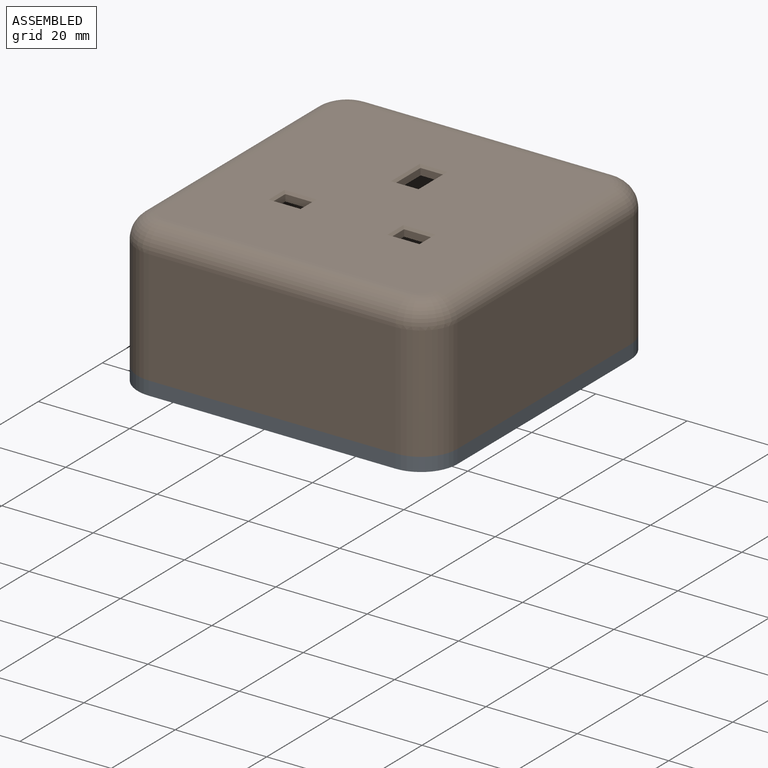
[diagram: assembled view]
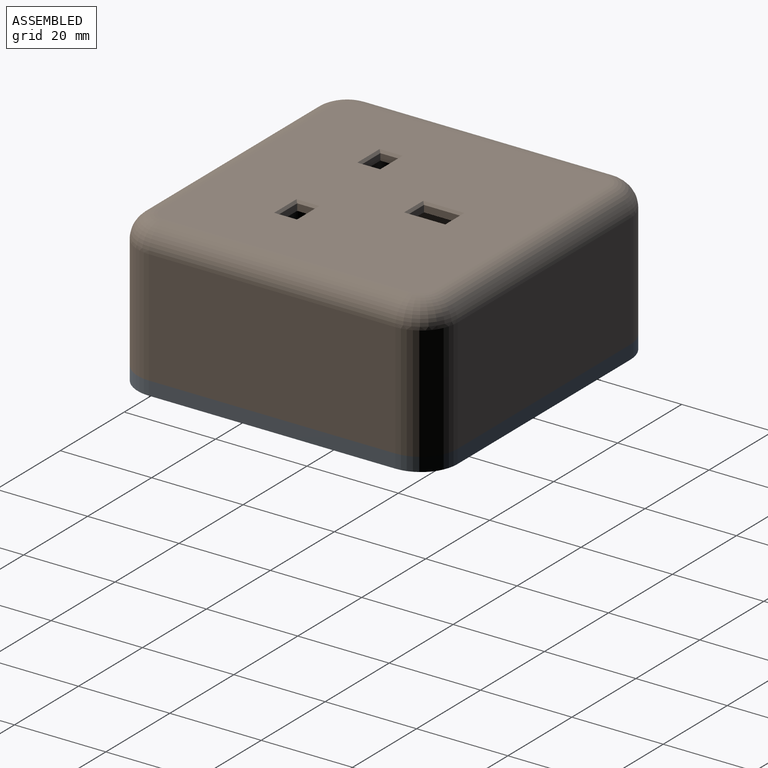
[diagram: assembled view, second angle]
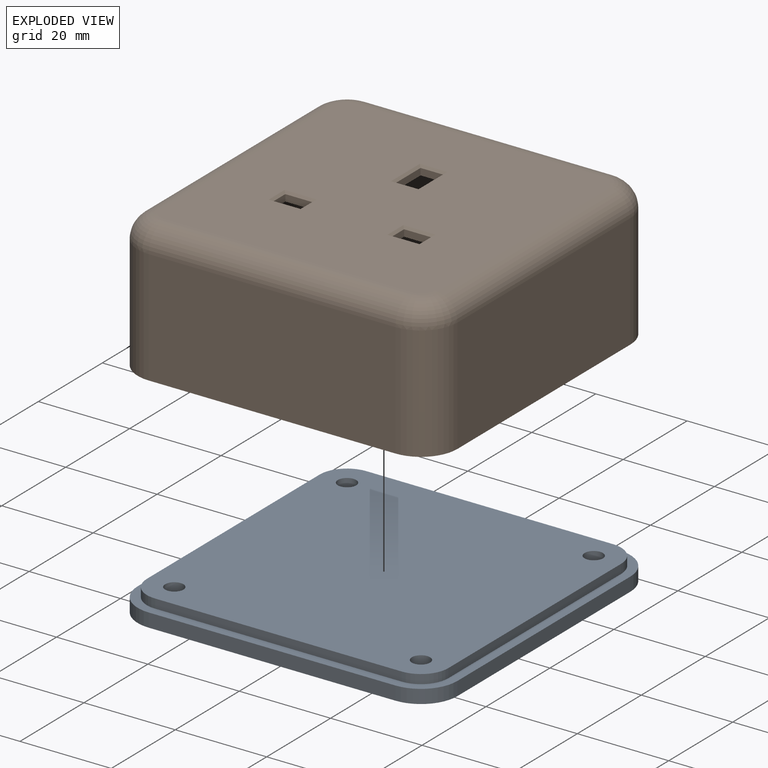
[diagram: exploded view]
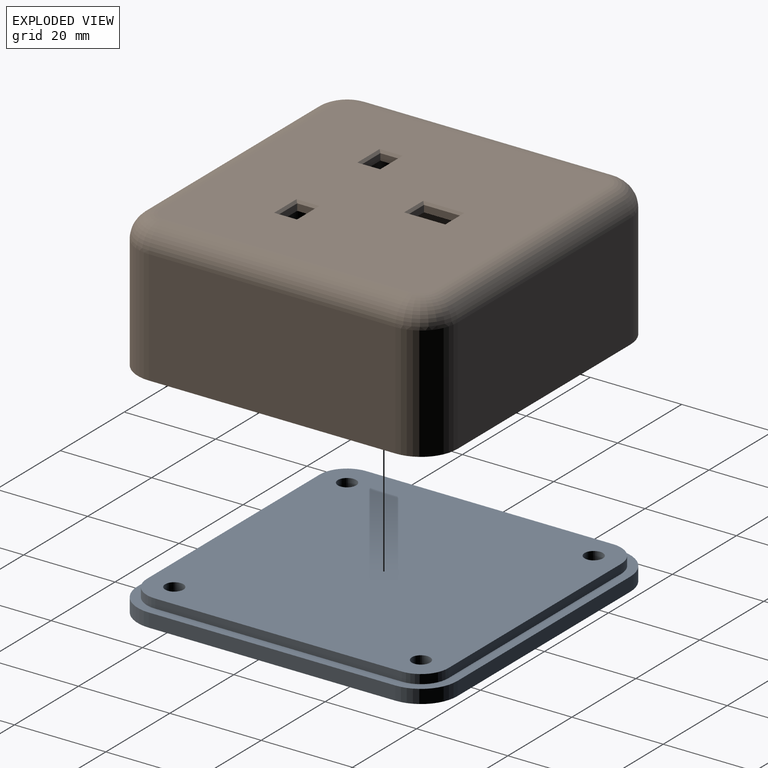
[diagram: exploded view, second angle]
ASSEMBLY  parts=2 mates=2
PART A: 27 faces, bbox 70x5x70 mm
  f0: plane 54x3mm, normal (1,0,0), area 162mm2, adj f4,f5,f6,f9
  f1: plane 54x3mm, normal (0,0,1), area 162mm2, adj f4,f5,f6,f7
  f2: plane 54x3mm, normal (-1,0,0), area 162mm2, adj f4,f5,f7,f8
  f3: plane 54x3mm, normal (0,0,-1), area 162mm2, adj f4,f5,f8,f9
  f4: plane 70x70mm, normal (0,-1,0), area 520mm2, adj f0,f1,f2,f3,f6,f7,f8,f9
  f5: plane 70x70mm, normal (0,1,0), area 4691.1mm2, adj f0,f1,f2,f3,f6,f7,f8,f9
  f6: cylinder r=8mm len=8mm, axis (0,-1,0), area 37.7mm2, adj f0,f1,f4,f5
  f7: cylinder r=8mm len=8mm, axis (0,1,0), area 37.7mm2, adj f1,f2,f4,f5
  f8: cylinder r=8mm len=8mm, axis (0,-1,0), area 37.7mm2, adj f2,f3,f4,f5
  f9: cylinder r=8mm len=8mm, axis (0,1,0), area 37.7mm2, adj f0,f3,f4,f5
  f10: plane 54x2mm, normal (1,0,0), area 108mm2, adj f4,f11,f17,f18
  f11: cylinder r=6mm len=6mm, axis (0,1,0), area 18.8mm2, adj f4,f10,f12,f18
  f12: plane 54x2mm, normal (0,0,1), area 108mm2, adj f4,f11,f13,f18
  f13: cylinder r=6mm len=6mm, axis (0,1,0), area 18.8mm2, adj f4,f12,f14,f18
  f14: plane 54x2mm, normal (-1,0,0), area 108mm2, adj f4,f13,f15,f18
  f15: cylinder r=6mm len=6mm, axis (0,1,0), area 18.8mm2, adj f4,f14,f16,f18
  f16: plane 54x2mm, normal (0,0,-1), area 108mm2, adj f4,f15,f17,f18
  f17: cylinder r=6mm len=6mm, axis (0,1,0), area 18.8mm2, adj f4,f10,f16,f18
  f18: plane 66x66mm, normal (0,-1,0), area 4274.8mm2, adj f10,f11,f12,f13,f14,f15,f16,f17
  f19: cylinder r=2mm len=4mm, axis (0,-1,0), area 44mm2, adj f18,f25
  f20: cylinder r=2mm len=4mm, axis (0,-1,0), area 44mm2, adj f18,f26
  f21: cylinder r=2mm len=4mm, axis (0,-1,0), area 44mm2, adj f18,f23
  f22: cylinder r=2mm len=4mm, axis (0,-1,0), area 44mm2, adj f18,f24
  f23: cone r=3.5mm half-angle=45deg, axis (0,1,0), area 36.7mm2, adj f5,f21
  f24: cone r=3.5mm half-angle=45deg, axis (0,1,0), area 36.7mm2, adj f5,f22
  f25: cone r=3.5mm half-angle=45deg, axis (0,1,0), area 36.7mm2, adj f5,f19
  f26: cone r=3.5mm half-angle=45deg, axis (0,1,0), area 36.7mm2, adj f5,f20
PART B: 91 faces, bbox 70x70x30 mm
  f0: plane 60x60mm, normal (0,0,-1), area 3009.6mm2, adj f3,f4,f7,f8,f31,f32,f33,f34
  f1: plane 54x25mm, normal (0,-1,0), area 976.6mm2, adj f2,f4,f12,f29,f63,f64,f72,f73
  f2: cylinder r=6mm len=6mm, axis (0,0,-1), area 28.3mm2, adj f1,f6,f12,f73
  f3: cylinder r=3mm len=37.03mm, axis (0,1,0), area 174.5mm2, adj f0,f9,f47,f65
  f4: cylinder r=3mm len=37.03mm, axis (1,0,0), area 174.5mm2, adj f0,f1,f67,f76
  f5: plane 54x25mm, normal (0,1,0), area 976.6mm2, adj f7,f10,f12,f30,f45,f46,f54,f55
  f6: plane 54x25mm, normal (-1,0,0), area 976.6mm2, adj f2,f8,f12,f30,f52,f55,f71,f73
  f7: cylinder r=3mm len=37.03mm, axis (-1,0,0), area 174.5mm2, adj f0,f5,f49,f58
  f8: cylinder r=3mm len=37.03mm, axis (0,-1,0), area 174.5mm2, adj f0,f6,f56,f74
  f9: plane 54x25mm, normal (1,0,0), area 976.6mm2, adj f3,f10,f12,f29,f44,f46,f61,f64
  f10: cylinder r=6mm len=6mm, axis (0,0,-1), area 28.3mm2, adj f5,f9,f12,f46
  f11: plane 60x60mm, normal (0,0,1), area 3468.3mm2, adj f21,f22,f23,f24,f25,f26,f27,f28
  f12: plane 70x70mm, normal (0,0,-1), area 520mm2, adj f1,f2,f5,f6,f9,f10,f13,f14
  f13: plane 54x25mm, normal (0,1,0), area 1350mm2, adj f12,f17,f20,f24
  f14: plane 54x25mm, normal (-1,0,0), area 1350mm2, adj f12,f17,f18,f21
  f15: plane 54x25mm, normal (0,-1,0), area 1350mm2, adj f12,f18,f19,f25
  f16: plane 54x25mm, normal (1,0,0), area 1350mm2, adj f12,f19,f20,f28
  f17: cylinder r=8mm len=25mm, axis (0,0,1), area 314.2mm2, adj f12,f13,f14,f22
  f18: cylinder r=8mm len=25mm, axis (0,0,-1), area 314.2mm2, adj f12,f14,f15,f23
  f19: cylinder r=8mm len=25mm, axis (0,0,1), area 314.2mm2, adj f12,f15,f16,f27
  f20: cylinder r=8mm len=25mm, axis (0,0,-1), area 314.2mm2, adj f12,f13,f16,f26
  f21: cylinder r=5mm len=54mm, axis (0,1,0), area 424.1mm2, adj f11,f14,f22,f23
  f22: torus R=3mm, axis (0,0,1), area 76.3mm2, adj f11,f17,f21,f24
  f23: torus R=3mm, axis (0,0,1), area 76.3mm2, adj f11,f18,f21,f25
  f24: cylinder r=5mm len=54mm, axis (1,0,0), area 424.1mm2, adj f11,f13,f22,f26
  f25: cylinder r=5mm len=54mm, axis (-1,0,0), area 424.1mm2, adj f11,f15,f23,f27
  f26: torus R=3mm, axis (0,0,1), area 76.3mm2, adj f11,f20,f24,f28
  f27: torus R=3mm, axis (0,0,1), area 76.3mm2, adj f11,f19,f25,f28
  f28: cylinder r=5mm len=54mm, axis (0,-1,0), area 424.1mm2, adj f11,f16,f26,f27
  f29: cylinder r=6mm len=6mm, axis (0,0,1), area 28.3mm2, adj f1,f9,f12,f64
  f30: cylinder r=6mm len=6mm, axis (0,0,1), area 28.3mm2, adj f5,f6,f12,f55
  f31: plane 6x1.5mm, normal (0,1,0), area 9mm2, adj f0,f32,f34,f81
  f32: plane 4x1.5mm, normal (-1,0,0), area 6mm2, adj f0,f31,f33,f82
  f33: plane 6x1.5mm, normal (0,-1,0), area 9mm2, adj f0,f32,f34,f80
  f34: plane 4x1.5mm, normal (1,0,0), area 6mm2, adj f0,f31,f33,f79
  f35: plane 8x1.5mm, normal (-1,0,0), area 12mm2, adj f0,f36,f38,f88
  f36: plane 5x1.5mm, normal (0,-1,0), area 7.5mm2, adj f0,f35,f37,f87
  f37: plane 8x1.5mm, normal (1,0,0), area 12mm2, adj f0,f36,f38,f89
  f38: plane 5x1.5mm, normal (0,1,0), area 7.5mm2, adj f0,f35,f37,f90
  f39: plane 6x1.5mm, normal (0,-1,0), area 9mm2, adj f0,f40,f42,f84
  f40: plane 4x1.5mm, normal (1,0,0), area 6mm2, adj f0,f39,f41,f83
  f41: plane 6x1.5mm, normal (0,1,0), area 9mm2, adj f0,f40,f42,f85
  f42: plane 4x1.5mm, normal (-1,0,0), area 6mm2, adj f0,f39,f41,f86
  f43: cylinder r=6mm len=22mm, axis (0,0,-1), area 297.1mm2, adj f44,f45,f46,f48
  f44: cylinder r=3mm len=22mm, axis (0,0,-1), area 126.1mm2, adj f9,f43,f46,f47
  f45: cylinder r=3mm len=22mm, axis (0,0,-1), area 126.1mm2, adj f5,f43,f46,f49
  f46: plane 14.49x14.49mm, normal (0,0,-1), area 120.9mm2, adj f5,f9,f10,f43,f44,f45,f50
  f47: sphere r=3mm, area 17.2mm2, adj f3,f44,f48
  f48: torus R=9mm, axis (0,0,1), area 75.2mm2, adj f0,f43,f47,f49
  f49: sphere r=3mm, area 17.2mm2, adj f7,f45,f48
  f50: cylinder r=1.5mm len=10mm, axis (0,0,-1), area 94.2mm2, adj f46,f51
  f51: plane 3x3mm, normal (0,0,-1), area 7.1mm2, adj f50
  f52: cylinder r=3mm len=22mm, axis (0,0,-1), area 126.1mm2, adj f6,f53,f55,f56
  f53: cylinder r=6mm len=22mm, axis (0,0,-1), area 297.1mm2, adj f52,f54,f55,f57
  f54: cylinder r=3mm len=22mm, axis (0,0,-1), area 126.1mm2, adj f5,f53,f55,f58
  f55: plane 14.49x14.49mm, normal (0,0,-1), area 120.9mm2, adj f5,f6,f30,f52,f53,f54,f59
  f56: sphere r=3mm, area 17.2mm2, adj f8,f52,f57
  f57: torus R=9mm, axis (0,0,1), area 75.2mm2, adj f0,f53,f56,f58
  f58: sphere r=3mm, area 17.2mm2, adj f7,f54,f57
  f59: cylinder r=1.5mm len=10mm, axis (0,0,-1), area 94.2mm2, adj f55,f60
  f60: plane 3x3mm, normal (0,0,-1), area 7.1mm2, adj f59
  f61: cylinder r=3mm len=22mm, axis (0,0,-1), area 126.1mm2, adj f9,f62,f64,f65
  f62: cylinder r=6mm len=22mm, axis (0,0,-1), area 297.1mm2, adj f61,f63,f64,f66
  f63: cylinder r=3mm len=22mm, axis (0,0,-1), area 126.1mm2, adj f1,f62,f64,f67
  f64: plane 14.49x14.49mm, normal (0,0,-1), area 120.9mm2, adj f1,f9,f29,f61,f62,f63,f68
  f65: sphere r=3mm, area 17.2mm2, adj f3,f61,f66
  f66: torus R=9mm, axis (0,0,1), area 75.2mm2, adj f0,f62,f65,f67
  f67: sphere r=3mm, area 17.2mm2, adj f4,f63,f66
  f68: cylinder r=1.5mm len=10mm, axis (0,0,-1), area 94.2mm2, adj f64,f69
  f69: plane 3x3mm, normal (0,0,-1), area 7.1mm2, adj f68
  f70: cylinder r=6mm len=22mm, axis (0,0,-1), area 297.1mm2, adj f71,f72,f73,f75
  f71: cylinder r=3mm len=22mm, axis (0,0,-1), area 126.1mm2, adj f6,f70,f73,f74
  f72: cylinder r=3mm len=22mm, axis (0,0,-1), area 126.1mm2, adj f1,f70,f73,f76
  f73: plane 14.49x14.49mm, normal (0,0,-1), area 120.9mm2, adj f1,f2,f6,f70,f71,f72,f77
  f74: sphere r=3mm, area 17.2mm2, adj f8,f71,f75
  f75: torus R=9mm, axis (0,0,1), area 75.2mm2, adj f0,f70,f74,f76
  f76: sphere r=3mm, area 17.2mm2, adj f4,f72,f75
  f77: cylinder r=1.5mm len=10mm, axis (0,0,-1), area 94.2mm2, adj f73,f78
  f78: plane 3x3mm, normal (0,0,-1), area 7.1mm2, adj f77
  f79: plane 5x0.5mm, normal (0.71,0,0.71), area 3.2mm2, adj f11,f34,f80,f81
  f80: plane 7x0.5mm, normal (0,-0.71,0.71), area 4.6mm2, adj f11,f33,f79,f82
  f81: plane 7x0.5mm, normal (0,0.71,0.71), area 4.6mm2, adj f11,f31,f79,f82
  f82: plane 5x0.5mm, normal (-0.71,0,0.71), area 3.2mm2, adj f11,f32,f80,f81
  f83: plane 5x0.5mm, normal (0.71,0,0.71), area 3.2mm2, adj f11,f40,f84,f85
  f84: plane 7x0.5mm, normal (0,-0.71,0.71), area 4.6mm2, adj f11,f39,f83,f86
  f85: plane 7x0.5mm, normal (0,0.71,0.71), area 4.6mm2, adj f11,f41,f83,f86
  f86: plane 5x0.5mm, normal (-0.71,0,0.71), area 3.2mm2, adj f11,f42,f84,f85
  f87: plane 6x0.5mm, normal (0,-0.71,0.71), area 3.9mm2, adj f11,f36,f88,f89
  f88: plane 9x0.5mm, normal (-0.71,0,0.71), area 6mm2, adj f11,f35,f87,f90
  f89: plane 9x0.5mm, normal (0.71,0,0.71), area 6mm2, adj f11,f37,f87,f90
  f90: plane 6x0.5mm, normal (0,0.71,0.71), area 3.9mm2, adj f11,f38,f88,f89
PLACE A rot(axis=(-1,0,0),90deg) t=(0.18,5,2.95)mm
PLACE B t=(0.18,5,5.95)mm fixed
MATE cylindrical A.f6 <-> B.f2  axis (0,0,-1) through (27.18,32,2.95)mm
MATE parallel A.f4 <-> B.f12  axis (0,0,1) through (0.18,5,5.95)mm
